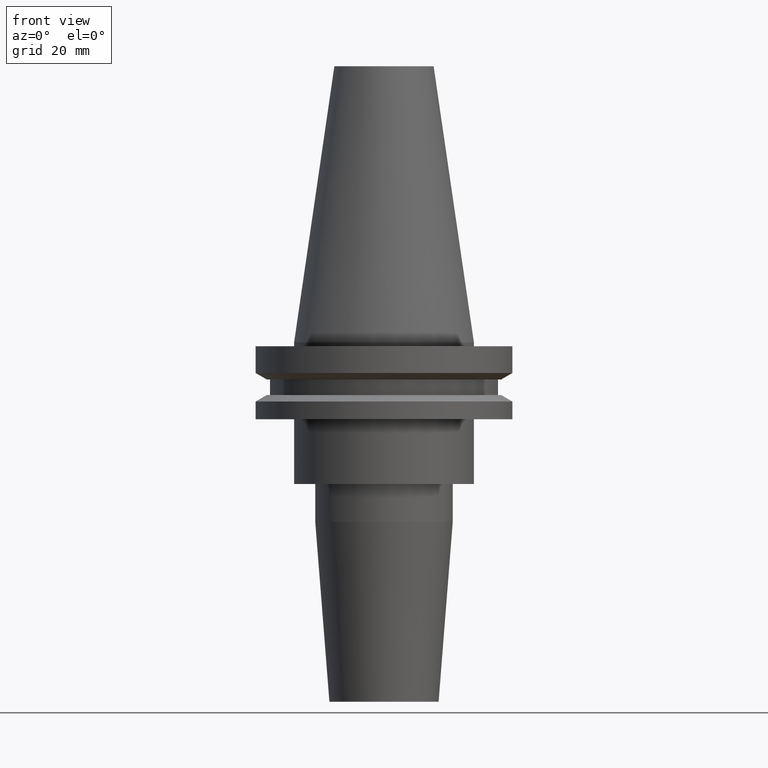
[diagram: clean part render]
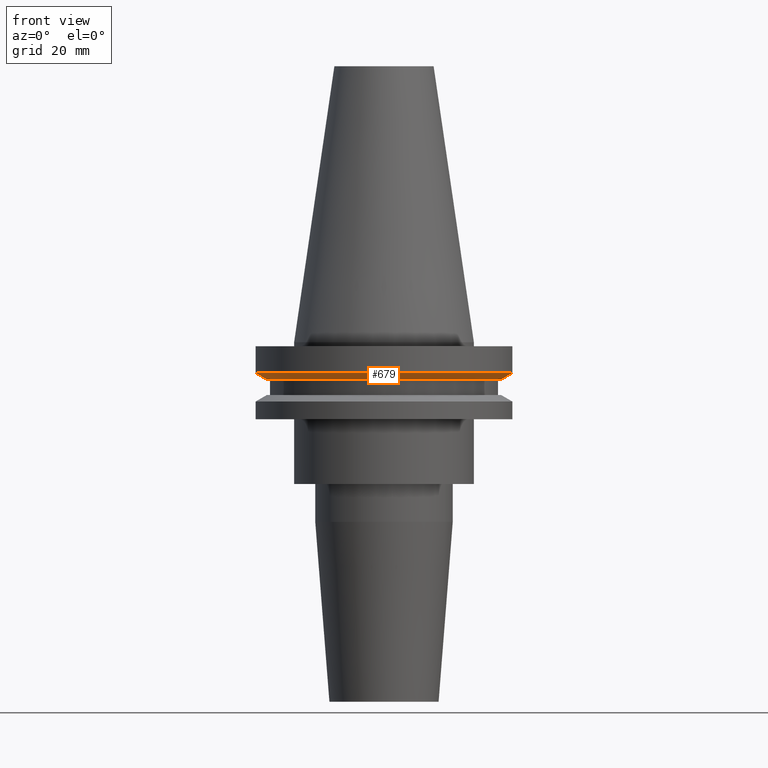
[diagram: same view with one face highlighted and labeled with its STEP entity id]
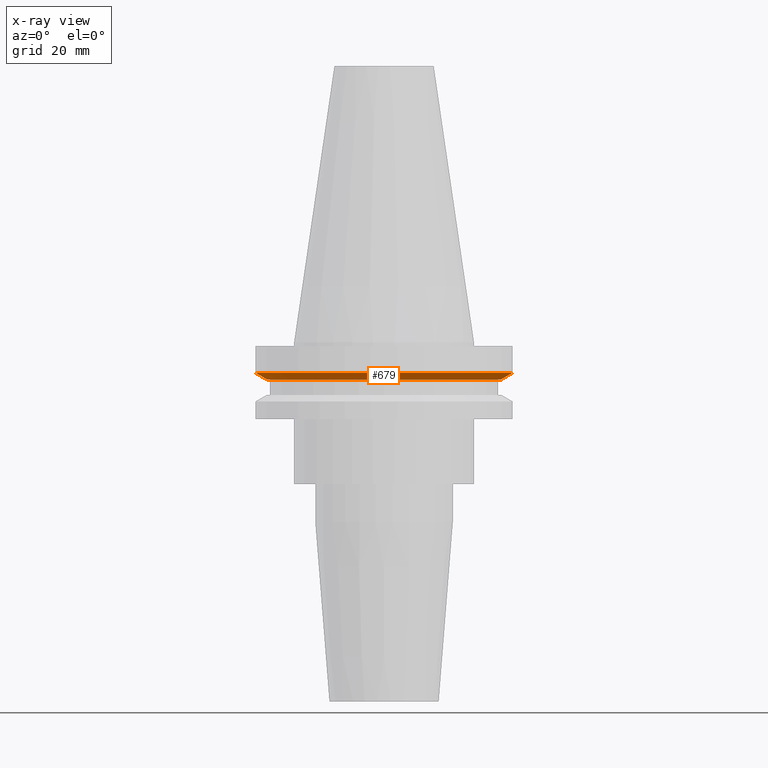
[diagram: x-ray of the same camera — body ghosted, the highlighted face saturated]
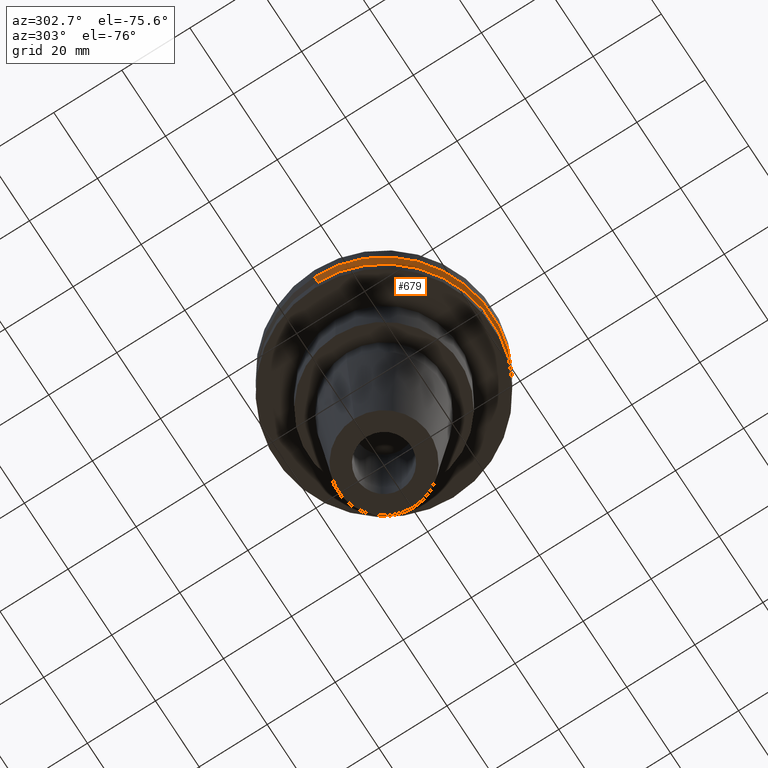
[diagram: same view with one face highlighted and labeled with its STEP entity id]
A machine part, front view. The second image highlights one B-rep face of the part: STEP entity #679.
The next image is the same camera in x-ray: the body ghosted, the highlighted face saturated — about 0% of this face is hidden behind the body in this view.
A second angle (auxiliary view) of the same face is appended — the face is thin or edge-on in the first view.
In plain terms, the highlighted conical surface has half-angle 60 deg.
Its self-contained STEP definition (entity closure, byte-faithful):
#14 = CARTESIAN_POINT ( 'NONE',  ( -31.75000000000000000, 3.888253587292846476E-15, -7.605276606597335842 ) ) ;
#20 = ORIENTED_EDGE ( 'NONE', *, *, #522, .F. ) ;
#23 = LINE ( 'NONE', #91, #213 ) ;
#26 = ORIENTED_EDGE ( 'NONE', *, *, #159, .F. ) ;
#28 = DIRECTION ( 'NONE',  ( -0.8660254037844389297, 1.060575238724907285E-16, 0.4999999999999995004 ) ) ;
#91 = CARTESIAN_POINT ( 'NONE',  ( -28.97919780457007732, 3.548928183322474856E-15, -9.205000000000005400 ) ) ;
#120 = CARTESIAN_POINT ( 'NONE',  ( 0.000000000000000000, 0.000000000000000000, -9.205000000000005400 ) ) ;
#123 = DIRECTION ( 'NONE',  ( 1.000000000000000000, 0.000000000000000000, 0.000000000000000000 ) ) ;
#159 = EDGE_CURVE ( 'NONE', #791, #533, #769, .T. ) ;
#172 = EDGE_CURVE ( 'NONE', #409, #341, #245, .T. ) ;
#213 = VECTOR ( 'NONE', #28, 1000.000000000000000 ) ;
#234 = CARTESIAN_POINT ( 'NONE',  ( -28.97919780457007732, 3.718590885307660666E-15, -9.205000000000005400 ) ) ;
#239 = CARTESIAN_POINT ( 'NONE',  ( 31.75000000000000000, 0.000000000000000000, -7.605276606597335842 ) ) ;
#245 = CIRCLE ( 'NONE', #728, 28.97919780457007732 ) ;
#289 = DIRECTION ( 'NONE',  ( 0.8660254037844389297, 0.000000000000000000, 0.4999999999999995004 ) ) ;
#341 = VERTEX_POINT ( 'NONE', #799 ) ;
#368 = CONICAL_SURFACE ( 'NONE', #739, 28.97919780457007732, 1.047197551196598297 ) ;
#387 = DIRECTION ( 'NONE',  ( -0.000000000000000000, -0.000000000000000000, 1.000000000000000000 ) ) ;
#409 = VERTEX_POINT ( 'NONE', #234 ) ;
#411 = EDGE_CURVE ( 'NONE', #341, #533, #813, .T. ) ;
#445 = ORIENTED_EDGE ( 'NONE', *, *, #172, .T. ) ;
#489 = CARTESIAN_POINT ( 'NONE',  ( 28.97919780457007732, 0.000000000000000000, -9.205000000000005400 ) ) ;
#502 = AXIS2_PLACEMENT_3D ( 'NONE', #510, #585, #780 ) ;
#510 = CARTESIAN_POINT ( 'NONE',  ( 0.000000000000000000, 0.000000000000000000, -7.605276606597335842 ) ) ;
#522 = EDGE_CURVE ( 'NONE', #409, #791, #23, .T. ) ;
#533 = VERTEX_POINT ( 'NONE', #239 ) ;
#567 = DIRECTION ( 'NONE',  ( -0.000000000000000000, -0.000000000000000000, 1.000000000000000000 ) ) ;
#585 = DIRECTION ( 'NONE',  ( -0.000000000000000000, -0.000000000000000000, 1.000000000000000000 ) ) ;
#613 = EDGE_LOOP ( 'NONE', ( #20, #445, #637, #26 ) ) ;
#637 = ORIENTED_EDGE ( 'NONE', *, *, #411, .T. ) ;
#679 = ADVANCED_FACE ( 'NONE', ( #714 ), #368, .T. ) ;
#681 = VECTOR ( 'NONE', #289, 1000.000000000000000 ) ;
#704 = DIRECTION ( 'NONE',  ( 1.000000000000000000, 0.000000000000000000, 0.000000000000000000 ) ) ;
#714 = FACE_OUTER_BOUND ( 'NONE', #613, .T. ) ;
#722 = CARTESIAN_POINT ( 'NONE',  ( 0.000000000000000000, 0.000000000000000000, -9.205000000000005400 ) ) ;
#728 = AXIS2_PLACEMENT_3D ( 'NONE', #722, #567, #704 ) ;
#739 = AXIS2_PLACEMENT_3D ( 'NONE', #120, #387, #123 ) ;
#769 = CIRCLE ( 'NONE', #502, 31.75000000000000000 ) ;
#780 = DIRECTION ( 'NONE',  ( 1.000000000000000000, 0.000000000000000000, 0.000000000000000000 ) ) ;
#791 = VERTEX_POINT ( 'NONE', #14 ) ;
#799 = CARTESIAN_POINT ( 'NONE',  ( 28.97919780457007732, 0.000000000000000000, -9.205000000000005400 ) ) ;
#813 = LINE ( 'NONE', #489, #681 ) ;